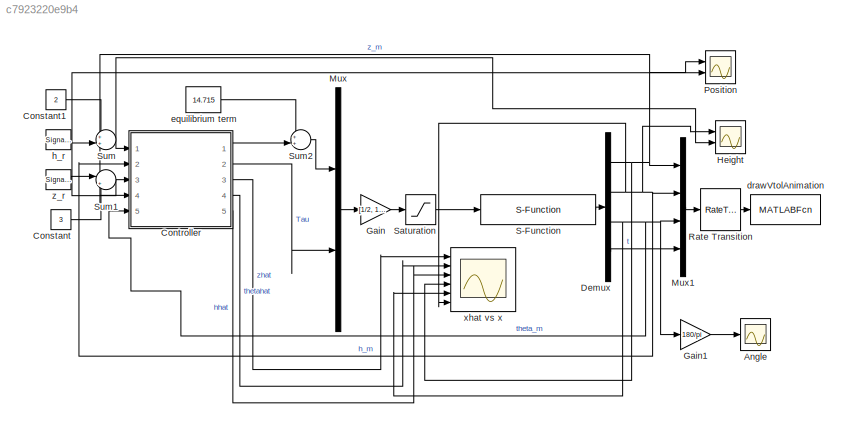
MODEL slx_c7923220e9b4
KIND model
CONFIG AbsTol = auto
CONFIG EnableMultiTasking = off
CONFIG FixedStep = auto
CONFIG InitFcn = planar_vtol_param\n
CONFIG MaxStep = 1
CONFIG MinStep = 0.005
CONFIG RelTol = 1e-3
CONFIG SampleTimeConstraint = Unconstrained
CONFIG Solver = ode45
CONFIG SolverName = ode45
CONFIG StartTime = 0.0
CONFIG StopTime = 100
BLOCK [Scope] Angle
  Floating = off
  NumInputPorts = 1
  Ports = [1]
  ScopeSpecificationString = Simulink.scopes.TimeScopeBlockCfg('CurrentConfiguration', extmgr.ConfigurationSet(extmgr.Configuration('Core','General UI',true),extmgr.Configuration('Core','Source UI',true),extmgr.Configuration('Sources','WiredSimulink',true,'DataLoggingVariableName','ScopeData2'),extmgr.Configuration('Visuals','Time Domain',true,'SerializedDisplays',{struct('MinYLimReal','-30.0093','MaxYLimReal','20.13989','YLa...<+1416ch>
BLOCK [Constant] Constant
  Value = 3
BLOCK [Constant] Constant1
  Value = 2
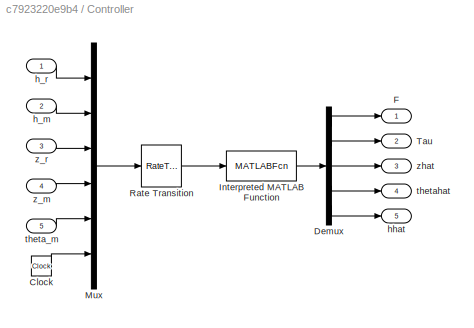
BLOCK [SubSystem] Controller
  Ports = [5, 5]
  RequestExecContextInheritance = off
BLOCK [Clock] Controller/Clock
BLOCK [Demux] Controller/Demux
  DisplayOption = bar
  Outputs = 5
  Ports = [1, 5]
BLOCK [Outport] Controller/F
  IconDisplay = Port number
BLOCK [MATLABFcn] Controller/Interpreted MATLAB Function
  MATLABFcn = planar_vtol_ctrl(u,Pa)
  Ports = [1, 1]
BLOCK [Mux] Controller/Mux
  DisplayOption = bar
  Inputs = 6
  Ports = [6, 1]
BLOCK [RateTransition] Controller/Rate Transition
  OutPortSampleTime = Pa.Ts
BLOCK [Outport] Controller/Tau
  IconDisplay = Port number
  Port = 2
BLOCK [Inport] Controller/h_m
  IconDisplay = Port number
  Port = 2
BLOCK [Inport] Controller/h_r
  IconDisplay = Port number
BLOCK [Outport] Controller/hhat
  IconDisplay = Port number
  Port = 5
BLOCK [Inport] Controller/theta_m
  IconDisplay = Port number
  Port = 5
BLOCK [Outport] Controller/thetahat
  IconDisplay = Port number
  Port = 4
BLOCK [Inport] Controller/z_m
  IconDisplay = Port number
  Port = 4
BLOCK [Inport] Controller/z_r
  IconDisplay = Port number
  Port = 3
BLOCK [Outport] Controller/zhat
  IconDisplay = Port number
  Port = 3
BLOCK [Demux] Demux
  DisplayOption = bar
  Ports = [1, 4]
BLOCK [Gain] Gain
  Gain = [1/2, 1/.6; 1/2, -1/.6]
  Multiplication = Matrix(K*u)
  OutDataTypeStr = Inherit: Inherit via internal rule
  ParamDataTypeStr = Inherit: Inherit via internal rule
  SaturateOnIntegerOverflow = off
BLOCK [Gain] Gain1
  Gain = 180/pi
  OutDataTypeStr = Inherit: Inherit via internal rule
  ParamDataTypeStr = Inherit: Inherit via internal rule
  SaturateOnIntegerOverflow = off
BLOCK [Scope] Height
  Floating = off
  NumInputPorts = 2
  Ports = [2]
  ScopeSpecificationString = Simulink.scopes.TimeScopeBlockCfg('CurrentConfiguration', extmgr.ConfigurationSet(extmgr.Configuration('Core','General UI',true),extmgr.Configuration('Core','Source UI',true),extmgr.Configuration('Sources','WiredSimulink',true,'DataLoggingVariableName','ScopeData1'),extmgr.Configuration('Visuals','Time Domain',true,'SerializedDisplays',{struct('MinYLimReal','-0.26875','MaxYLimReal','2.41875','YLab...<+1417ch>
BLOCK [Mux] Mux
  DisplayOption = bar
  Inputs = 2
  Ports = [2, 1]
BLOCK [Mux] Mux1
  DisplayOption = bar
  Ports = [4, 1]
BLOCK [Scope] Position
  Floating = off
  NumInputPorts = 2
  Ports = [2]
  ScopeSpecificationString = Simulink.scopes.TimeScopeBlockCfg('CurrentConfiguration', extmgr.ConfigurationSet(extmgr.Configuration('Core','General UI',true),extmgr.Configuration('Core','Source UI',true),extmgr.Configuration('Sources','WiredSimulink',true),extmgr.Configuration('Visuals','Time Domain',true,'SerializedDisplays',{struct('MinYLimReal','-0.39441','MaxYLimReal','3.54969','YLabelReal','','MinYLimMag','0.00000','MaxY...<+1381ch>
BLOCK [RateTransition] Rate Transition
  OutPortSampleTime = Pa.t_plot
BLOCK [S-Function] S-Function
  EnableBusSupport = off
  FunctionName = planar_vtol_dynamics
  Parameters = Pa
  Ports = [1, 1]
  SFcnIsStateOwnerBlock = off
  SFunctionDeploymentMode = off
BLOCK [Saturate] Saturation
  InputPortMap = u0
  LowerLimit = -Pa.F_max
  Ports = [1, 1]
  UpperLimit = Pa.F_max
BLOCK [Sum] Sum
  IconShape = round
  InputSameDT = off
  Inputs = ++|
  OutDataTypeStr = Inherit: Inherit via internal rule
  Ports = [2, 1]
  SaturateOnIntegerOverflow = off
BLOCK [Sum] Sum1
  IconShape = round
  InputSameDT = off
  Inputs = |++
  OutDataTypeStr = Inherit: Inherit via internal rule
  Ports = [2, 1]
  SaturateOnIntegerOverflow = off
BLOCK [Sum] Sum2
  IconShape = round
  InputSameDT = off
  Inputs = ++|
  OutDataTypeStr = Inherit: Inherit via internal rule
  Ports = [2, 1]
  SaturateOnIntegerOverflow = off
BLOCK [MATLABFcn] drawVtolAnimation
  MATLABFcn = planar_vtol_animation(u)
  OutputDimensions = 0
  Ports = [1]
BLOCK [Constant] equilibrium term
  Value = 14.715
BLOCK [SignalGenerator] h_r
  Amplitude = 0.15
  Frequency = 0.03
  Ports = [0, 1]
  WaveForm = square
BLOCK [Scope] xhat vs x
  Floating = off
  NumInputPorts = 6
  Ports = [6]
  ScopeSpecificationString = Simulink.scopes.TimeScopeBlockCfg('CurrentConfiguration', extmgr.ConfigurationSet(extmgr.Configuration('Core','General UI',true),extmgr.Configuration('Core','Source UI',true),extmgr.Configuration('Sources','WiredSimulink',true,'DataLoggingVariableName','ScopeData1'),extmgr.Configuration('Visuals','Time Domain',true,'SerializedDisplays',{struct('MinYLimReal','-0.44991','MaxYLimReal','3.55586','YLab...<+1500ch>
BLOCK [SignalGenerator] z_r
  Amplitude = 0.15
  Frequency = 0.03
  Ports = [0, 1]
  WaveForm = square
LINE Constant1:1 -> Sum:1
LINE Constant:1 -> Sum1:2
LINE Controller/Clock:1 -> Controller/Mux:6
LINE Controller/Demux:1 -> Controller/F:1
LINE Controller/Demux:2 -> Controller/Tau:1
LINE Controller/Demux:3 -> Controller/zhat:1
LINE Controller/Demux:4 -> Controller/thetahat:1
LINE Controller/Demux:5 -> Controller/hhat:1
LINE Controller/Interpreted MATLAB Function:1 -> Controller/Demux:1
LINE Controller/Mux:1 -> Controller/Rate Transition:1
LINE Controller/Rate Transition:1 -> Controller/Interpreted MATLAB Function:1
LINE Controller/h_m:1 -> Controller/Mux:2
LINE Controller/h_r:1 -> Controller/Mux:1
LINE Controller/theta_m:1 -> Controller/Mux:5
LINE Controller/z_m:1 -> Controller/Mux:4
LINE Controller/z_r:1 -> Controller/Mux:3
LINE Controller:1 -> Sum2:2
LINE Controller:2 -> Mux:2
LINE Controller:3 -> xhat vs x:1
LINE Controller:4 -> xhat vs x:2
LINE Controller:5 -> xhat vs x:3
NET Demux:1 -> Controller:4, Mux1:1, Position:1, xhat vs x:4
NET Demux:2 -> Controller:2, Height:1, Mux1:2, xhat vs x:6
NET Demux:3 -> Controller:5, Gain1:1, Mux1:3, xhat vs x:5
LINE Demux:4 -> Mux1:4
LINE Gain1:1 -> Angle:1
LINE Gain:1 -> Saturation:1
LINE Mux1:1 -> Rate Transition:1
LINE Mux:1 -> Gain:1
LINE Rate Transition:1 -> drawVtolAnimation:1
LINE S-Function:1 -> Demux:1
LINE Saturation:1 -> S-Function:1
NET Sum1:1 -> Controller:3, Position:2
LINE Sum2:1 -> Mux:1
NET Sum:1 -> Controller:1, Height:2
LINE equilibrium term:1 -> Sum2:1
LINE h_r:1 -> Sum:2
LINE z_r:1 -> Sum1:1
note: NET lines group one-source signal fan-out (src -> all destinations, sorted); 1:1 wires keep LINE
